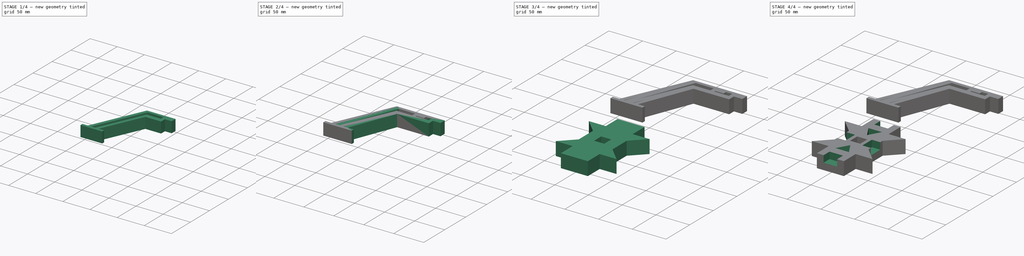
[diagram: build sequence overview — one tinted view per stage of 4, left to right]
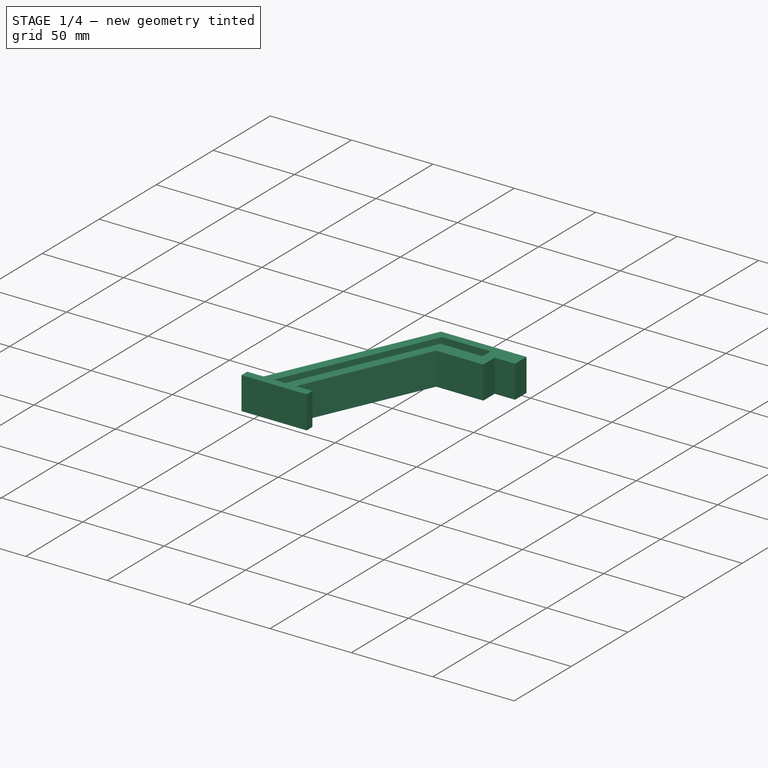
[diagram: stage 1 of 4 — iso view after this stage's code; geometry added in this stage tinted green]
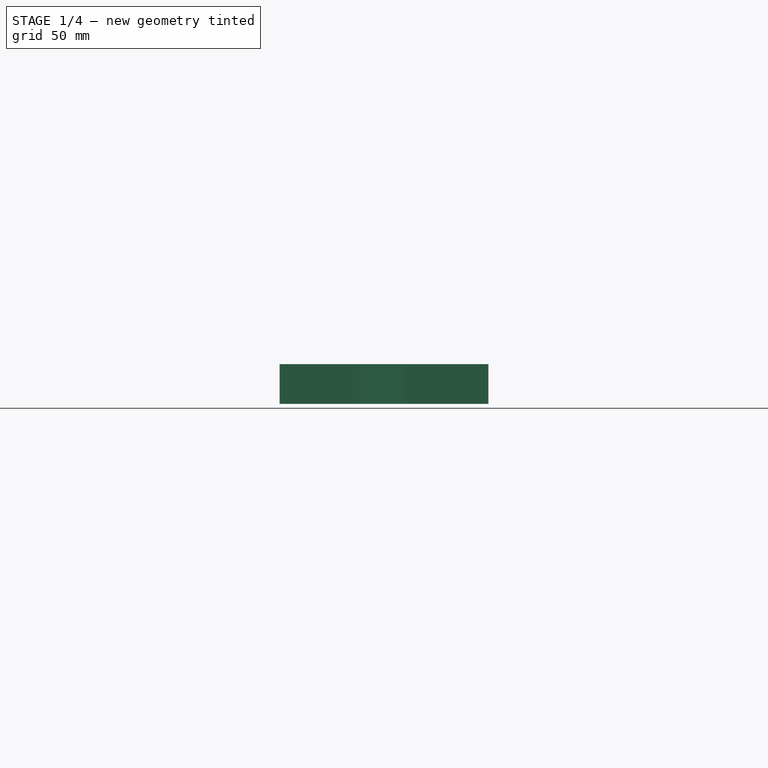
[diagram: stage 1 of 4 — front view after this stage's code; geometry added in this stage tinted green]
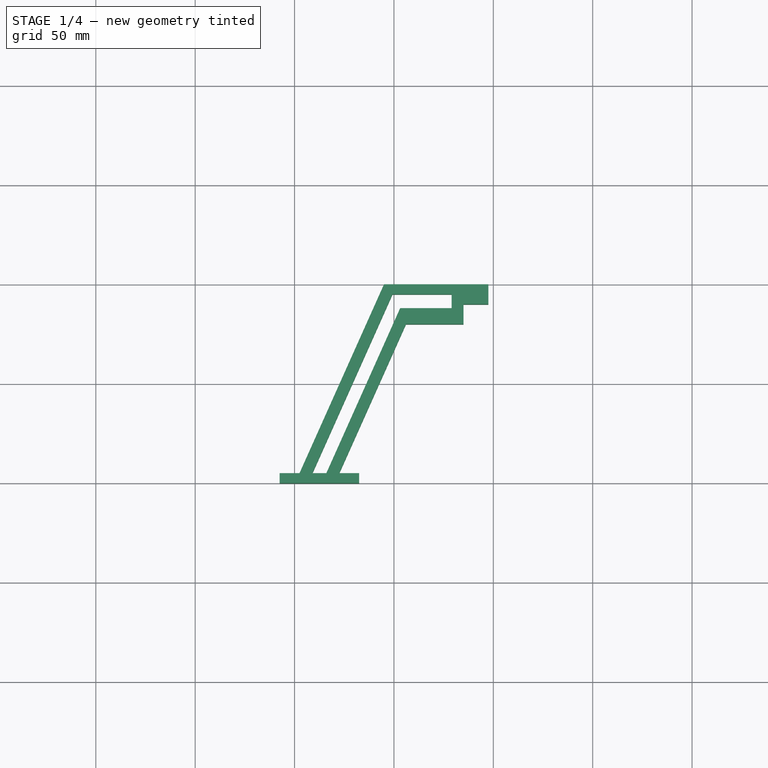
[diagram: stage 1 of 4 — top view after this stage's code; geometry added in this stage tinted green]
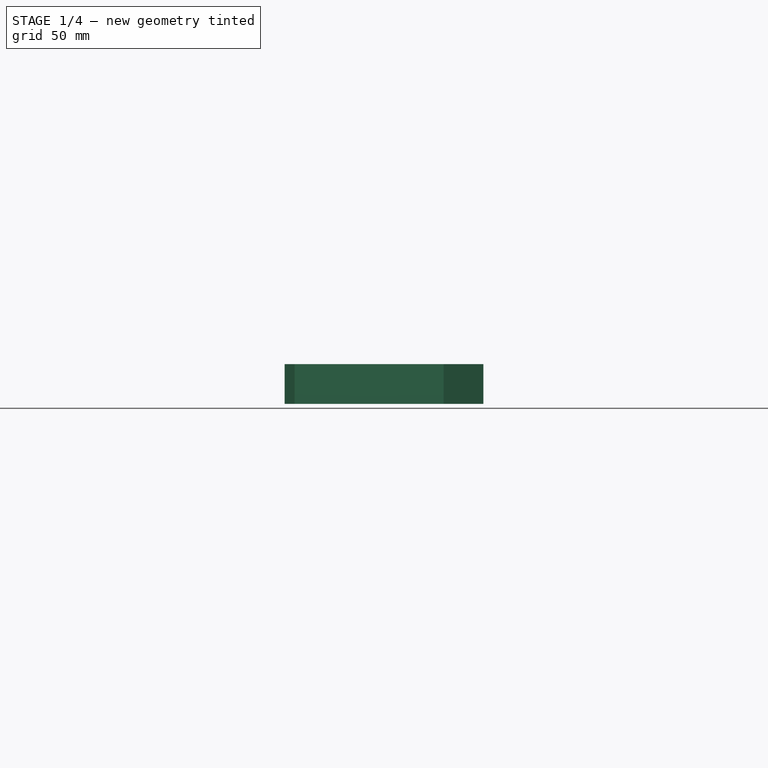
[diagram: stage 1 of 4 — right view after this stage's code; geometry added in this stage tinted green]
FCSTD DOCUMENT  (FreeCAD 0.20R29410 (Git))
Label: exoskeleton parts
License: All rights reserved
LicenseURL: http://en.wikipedia.org/wiki/All_rights_reserved
objects: Sketcher::SketchObject×11, PartDesign::Pocket×8, PartDesign::Pad×3, PartDesign::Body×3
note: 36 computed .brp shape members not serialized (recipe doc carries the construction recipe); baked Part::Feature solids carry a one-line shape summary decoded from their .brp

FEATURE [Sketcher::SketchObject] Sketch013
  FullyConstrained = true
  MapMode = 5
  Support = -> [XY_Plane003]
  sketch-geometry (10):
    g0: LineSegment StartX=22.5 StartY=5 StartZ=0 EndX=56.0526 EndY=80 EndZ=0
    g1: LineSegment StartX=56.0526 StartY=80 StartZ=0 EndX=97.5 EndY=80 EndZ=0
    g2: LineSegment StartX=97.5 StartY=80 StartZ=0 EndX=97.5 EndY=100 EndZ=0
    g3: LineSegment StartX=97.5 StartY=100 StartZ=0 EndX=45 EndY=100 EndZ=0
    g4: LineSegment StartX=45 StartY=100 StartZ=0 EndX=2.5 EndY=5 EndZ=0
    g5: LineSegment StartX=-7.5 StartY=5 StartZ=0 EndX=2.5 EndY=5 EndZ=0
    g6: LineSegment StartX=32.5 StartY=5 StartZ=0 EndX=32.5 EndY=0 EndZ=0
    g7: LineSegment StartX=32.5 StartY=0 StartZ=0 EndX=-7.5 EndY=0 EndZ=0
    g8: LineSegment StartX=-7.5 StartY=0 StartZ=0 EndX=-7.5 EndY=5 EndZ=0
    g9: LineSegment StartX=22.5 StartY=5 StartZ=0 EndX=32.5 EndY=5 EndZ=0
  constraints (29):
    c: Coincident(g0,g1)
    c: Horizontal(g1)
    c: Coincident(g1,g2)
    c: Vertical(g2)
    c: Coincident(g2,g3)
    c: Horizontal(g3)
    c: Coincident(g3,g4)
    c: DistanceX(g-1,g2) = 97.5
    c: Parallel(g4,g0)
    c: DistanceX(g3,g3) = 52.5
    c: DistanceY(g0,g3) = 20
    c: Coincident(g9,g6)
    c: Coincident(g6,g7)
    c: Coincident(g7,g8)
    c: Coincident(g8,g5)
    c: Horizontal(g5)
    c: Horizontal(g7)
    c: Vertical(g6)
    c: Vertical(g8)
    c: PointOnObject(g6,g-1)
    c: Coincident(g5,g4)
    c: Coincident(g9,g0)
    c: DistanceX(g5,g6) = 40
    c: DistanceY(g6,g6) = 5
    c: Tangent(g5,g9)
    c: DistanceX(g4,g2) = 95
    c: DistanceX(g4,g0) = 20
    c: DistanceY(g6,g2) = 100
    c: Equal(g5,g9)
FEATURE [PartDesign::Pad] Pad003
  Direction = (0,0,1)
  Length = 20
  Length2 = 10
  Profile = -> Sketch013
  ReferenceAxis = -> Sketch013 [N_Axis]
  Type = 0
FEATURE [Sketcher::SketchObject] Sketch014
  ExternalGeometry = -> [Pad003]
  FullyConstrained = true
  MapMode = 5
  Placement = pos=(0,80,0) rot=(1,0,0;1.5708rad)
  Support = -> [Pad003]
  sketch-geometry (4):
    g0: LineSegment StartX=97.5 StartY=20 StartZ=0 EndX=85 EndY=20 EndZ=0
    g1: LineSegment StartX=85 StartY=20 StartZ=0 EndX=85 EndY=0 EndZ=0
    g2: LineSegment StartX=85 StartY=0 StartZ=0 EndX=97.5 EndY=0 EndZ=0
    g3: LineSegment StartX=97.5 StartY=0 StartZ=0 EndX=97.5 EndY=20 EndZ=0
  constraints (11):
    c: Coincident(g0,g1)
    c: Coincident(g1,g2)
    c: Coincident(g2,g3)
    c: Coincident(g3,g0)
    c: Horizontal(g0)
    c: Horizontal(g2)
    c: Vertical(g1)
    c: Vertical(g3)
    c: Coincident(g0,g-3)
    c: PointOnObject(g1,g-1)
    c: DistanceX(g2,g2) = 12.5
FEATURE [PartDesign::Pocket] Pocket009
  BaseFeature = -> Pad003
  Direction = (0,1,-2e-16)
  Length = 10
  Length2 = 5
  Profile = -> Sketch014
  ReferenceAxis = -> Sketch014 [N_Axis]
  Type = 0
FEATURE [PartDesign::Body] Body  label="Long part"
  Group = -> [Sketch011,Pad,Sketch015,Pocket010,Sketch016,Pocket011]
  Origin = -> Origin
  Placement = pos=(-26.4855,0,0) rot=(0,0,1;0rad)
  Tip = -> Pocket011
FEATURE [Sketcher::SketchObject] Sketch017
  ExternalGeometry = -> [Pocket009]
  FullyConstrained = true
  MapMode = 5
  Placement = pos=(0,0,20) rot=(0,0,1;0rad)
  Support = -> [Pocket009]
  sketch-geometry (6):
    g0: LineSegment StartX=9 StartY=5 StartZ=0 EndX=49.2632 EndY=95 EndZ=0
    g1: LineSegment StartX=49.2632 StartY=95 StartZ=0 EndX=79 EndY=95 EndZ=0
    g2: LineSegment StartX=79 StartY=95 StartZ=0 EndX=79 EndY=88 EndZ=0
    g3: LineSegment StartX=79 StartY=88 StartZ=0 EndX=53.1316 EndY=88 EndZ=0
    g4: LineSegment StartX=53.1316 StartY=88 StartZ=0 EndX=16 EndY=5 EndZ=0
    g5: LineSegment StartX=16 StartY=5 StartZ=0 EndX=9 EndY=5 EndZ=0
  constraints (18):
    c: Coincident(g0,g1)
    c: Horizontal(g1)
    c: Coincident(g1,g2)
    c: Vertical(g2)
    c: Coincident(g2,g3)
    c: Horizontal(g3)
    c: Coincident(g3,g4)
    c: Coincident(g4,g5)
    c: Coincident(g5,g0)
    c: Horizontal(g5)
    c: Parallel(g0,g-4)
    c: Parallel(g-3,g4)
    c: DistanceX(g5,g5) = 7
    c: DistanceY(g3,g0) = 7
    c: DistanceY(g4,g1) = 90
    c: DistanceY(g0,g-5) = 5
    c: DistanceX(g-4,g0) = 6.5
    c: DistanceX(g0,g1) = 70
FEATURE [PartDesign::Pocket] Pocket012
  BaseFeature = -> Pocket009
  Direction = (0,0,-1)
  Length = 5
  Length2 = 5
  Profile = -> Sketch017
  ReferenceAxis = -> Sketch017 [N_Axis]
  Type = 1
FEATURE [PartDesign::Body] Body003  label="Short part"
  Group = -> [Sketch013,Pad003,Sketch014,Pocket009,Sketch017,Pocket012]
  Origin = -> Origin003
  Placement = pos=(165.795,98.8609,0) rot=(0,0,1;3.14159rad)
  Tip = -> Pocket012
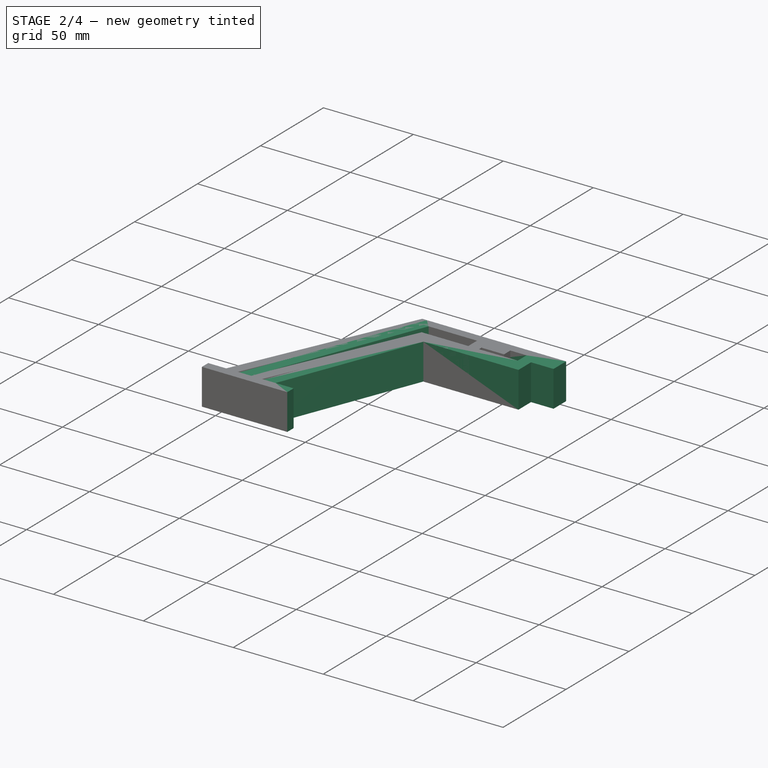
[diagram: stage 2 of 4 — iso view after this stage's code; geometry added in this stage tinted green]
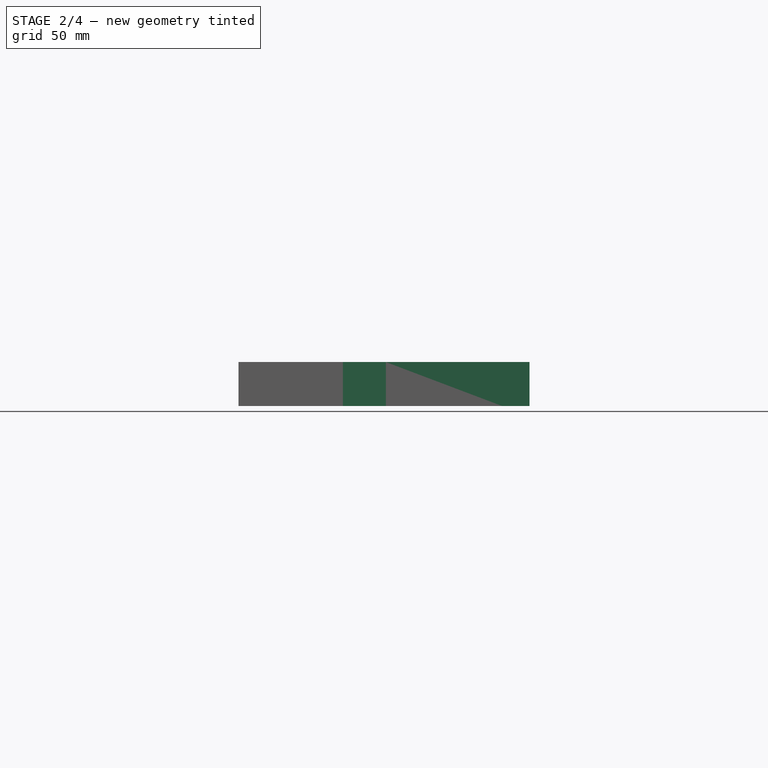
[diagram: stage 2 of 4 — front view after this stage's code; geometry added in this stage tinted green]
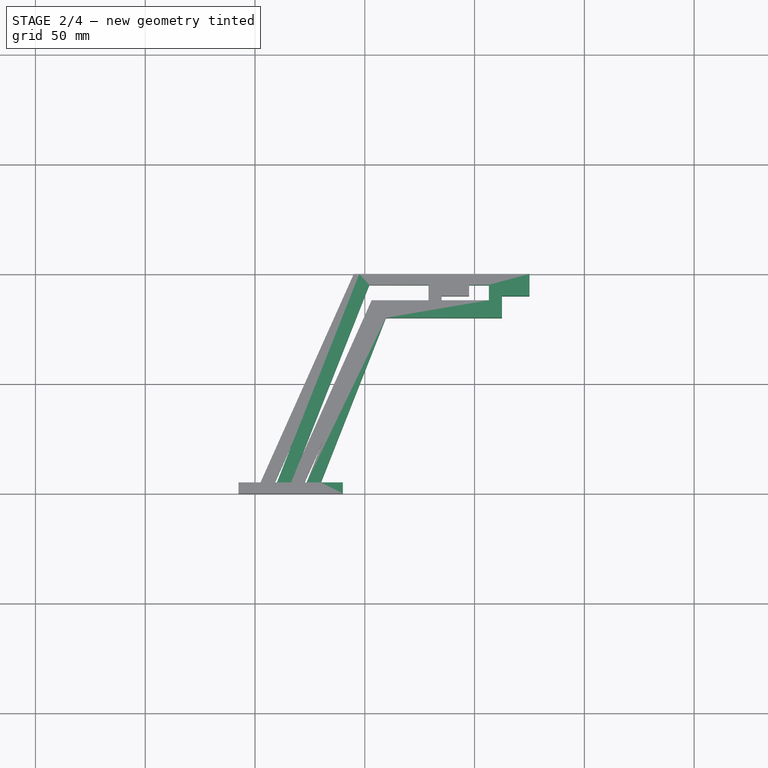
[diagram: stage 2 of 4 — top view after this stage's code; geometry added in this stage tinted green]
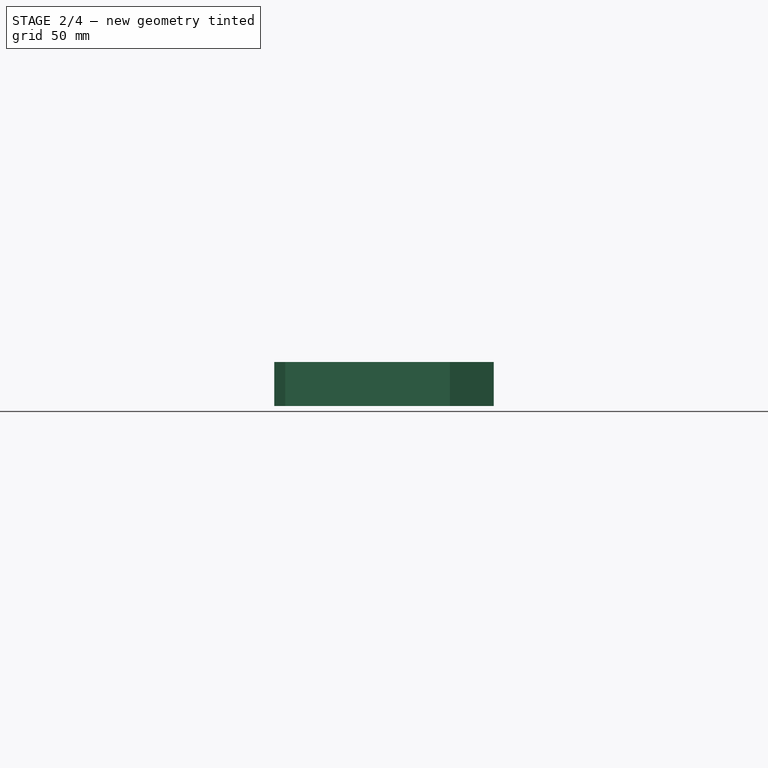
[diagram: stage 2 of 4 — right view after this stage's code; geometry added in this stage tinted green]
FEATURE [PartDesign::Body] Body002  label="Star"
  Group = -> [Sketch002,Pad002,Sketch008,Pocket005,Sketch,Pocket,Sketch009,Pocket006,Sketch010,Pocket007]
  Origin = -> Origin002
  Tip = -> Pocket007
FEATURE [Sketcher::SketchObject] Sketch011
  FullyConstrained = true
  MapMode = 5
  Support = -> [XY_Plane]
  sketch-geometry (10):
    g0: LineSegment StartX=30 StartY=5 StartZ=0 EndX=59.6053 EndY=80 EndZ=0
    g1: LineSegment StartX=59.6053 StartY=80 StartZ=0 EndX=125 EndY=80 EndZ=0
    g2: LineSegment StartX=125 StartY=80 StartZ=0 EndX=125 EndY=100 EndZ=0
    g3: LineSegment StartX=125 StartY=100 StartZ=0 EndX=47.5 EndY=100 EndZ=0
    g4: LineSegment StartX=47.5 StartY=100 StartZ=0 EndX=10 EndY=5 EndZ=0
    g5: LineSegment StartX=0 StartY=5 StartZ=0 EndX=10 EndY=5 EndZ=0
    g6: LineSegment StartX=40 StartY=5 StartZ=0 EndX=40 EndY=0 EndZ=0
    g7: LineSegment StartX=0 StartY=2.1e-15 StartZ=0 EndX=0 EndY=5 EndZ=0
    g8: LineSegment StartX=30 StartY=5 StartZ=0 EndX=40 EndY=5 EndZ=0
    g9: LineSegment StartX=0 StartY=2.1e-15 StartZ=0 EndX=40 EndY=0 EndZ=0
  constraints (28):
    c: Coincident(g0,g1)
    c: Horizontal(g1)
    c: Coincident(g1,g2)
    c: Vertical(g2)
    c: Coincident(g2,g3)
    c: Horizontal(g3)
    c: Coincident(g3,g4)
    c: Parallel(g4,g0)
    c: DistanceX(g3,g3) = 77.5
    c: DistanceY(g0,g3) = 20
    c: Coincident(g8,g6)
    c: Coincident(g7,g5)
    c: Horizontal(g5)
    c: Vertical(g6)
    c: Vertical(g7)
    c: PointOnObject(g6,g-1)
    c: DistanceY(g6,g6) = 5
    c: Coincident(g5,g4)
    c: Coincident(g8,g0)
    c: DistanceX(g7,g6) = 40
    c: Coincident(g7,g9)
    c: Coincident(g9,g6)
    c: Equal(g5,g8)
    c: Tangent(g8,g5)
    c: DistanceX(g7,g2) = 125
    c: DistanceY(g6,g2) = 100
    c: DistanceX(g4,g0) = 20
    c: Coincident(g7,g-1)
FEATURE [PartDesign::Pad] Pad
  Direction = (0,0,1)
  Length = 20
  Length2 = 10
  Profile = -> Sketch011
  ReferenceAxis = -> Sketch011 [N_Axis]
  Type = 0
FEATURE [Sketcher::SketchObject] Sketch015
  ExternalGeometry = -> [Pad]
  FullyConstrained = true
  MapMode = 5
  Placement = pos=(0,80,0) rot=(1,0,0;1.5708rad)
  Support = -> [Pad]
  sketch-geometry (4):
    g0: LineSegment StartX=125 StartY=20 StartZ=0 EndX=112.5 EndY=20 EndZ=0
    g1: LineSegment StartX=112.5 StartY=20 StartZ=0 EndX=112.5 EndY=0 EndZ=0
    g2: LineSegment StartX=112.5 StartY=0 StartZ=0 EndX=125 EndY=0 EndZ=0
    g3: LineSegment StartX=125 StartY=0 StartZ=0 EndX=125 EndY=20 EndZ=0
  constraints (10):
    c: Coincident(g0,g1)
    c: Coincident(g1,g2)
    c: Coincident(g2,g3)
    c: Coincident(g3,g0)
    c: Horizontal(g0)
    c: Horizontal(g2)
    c: Vertical(g1)
    c: Coincident(g0,g-4)
    c: DistanceX(g1,g0) = 12.5
    c: Coincident(g2,g-4)
FEATURE [PartDesign::Pocket] Pocket010
  BaseFeature = -> Pad
  Direction = (0,1,-2e-16)
  Length = 10
  Length2 = 5
  Profile = -> Sketch015
  ReferenceAxis = -> Sketch015 [N_Axis]
  Type = 0
FEATURE [Sketcher::SketchObject] Sketch016
  ExternalGeometry = -> [Pocket010]
  FullyConstrained = true
  MapMode = 5
  Placement = pos=(0,0,20) rot=(0,0,1;0rad)
  Support = -> [Pocket010]
  sketch-geometry (6):
    g0: LineSegment StartX=16.5 StartY=5 StartZ=0 EndX=52.0263 EndY=95 EndZ=0
    g1: LineSegment StartX=52.0263 StartY=95 StartZ=0 EndX=106.5 EndY=95 EndZ=0
    g2: LineSegment StartX=106.5 StartY=95 StartZ=0 EndX=106.5 EndY=88 EndZ=0
    g3: LineSegment StartX=106.5 StartY=88 StartZ=0 EndX=56.2632 EndY=88 EndZ=0
    g4: LineSegment StartX=56.2632 StartY=88 StartZ=0 EndX=23.5 EndY=5 EndZ=0
    g5: LineSegment StartX=23.5 StartY=5 StartZ=0 EndX=16.5 EndY=5 EndZ=0
  constraints (18):
    c: Coincident(g0,g1)
    c: Horizontal(g1)
    c: Coincident(g1,g2)
    c: Vertical(g2)
    c: Coincident(g2,g3)
    c: Horizontal(g3)
    c: Coincident(g3,g4)
    c: Coincident(g4,g5)
    c: Coincident(g5,g0)
    c: Parallel(g-4,g4)
    c: Parallel(g0,g-3)
    c: DistanceY(g4,g1) = 90
    c: DistanceY(g3,g0) = 7
    c: DistanceX(g5,g5) = 7
    c: Horizontal(g5)
    c: DistanceY(g0,g-5) = 5
    c: DistanceX(g0,g1) = 90
    c: DistanceX(g-3,g0) = 6.5
FEATURE [PartDesign::Pocket] Pocket011
  BaseFeature = -> Pocket010
  Direction = (0,0,-1)
  Length = 5
  Length2 = 5
  Profile = -> Sketch016
  ReferenceAxis = -> Sketch016 [N_Axis]
  Type = 1
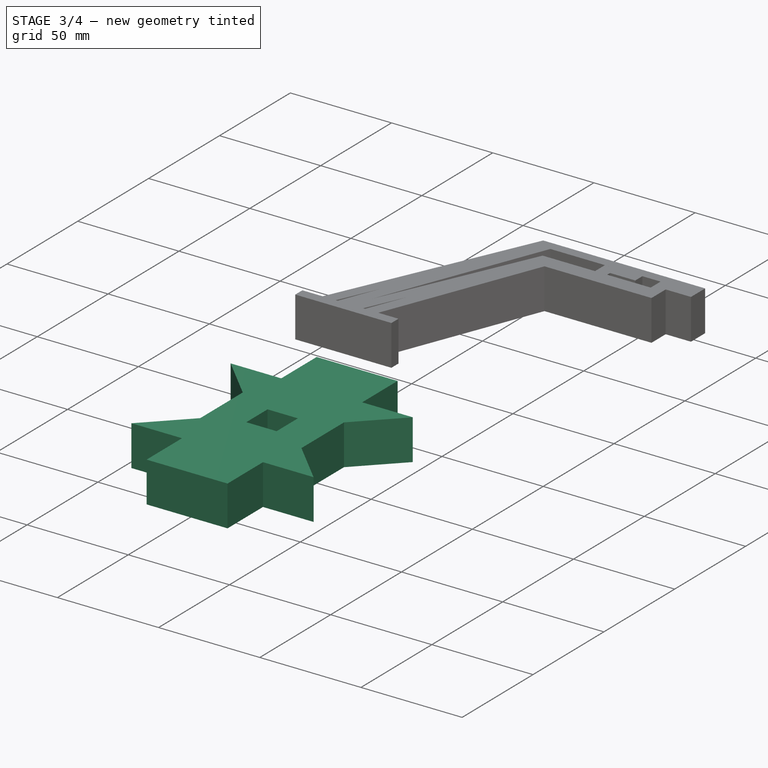
[diagram: stage 3 of 4 — iso view after this stage's code; geometry added in this stage tinted green]
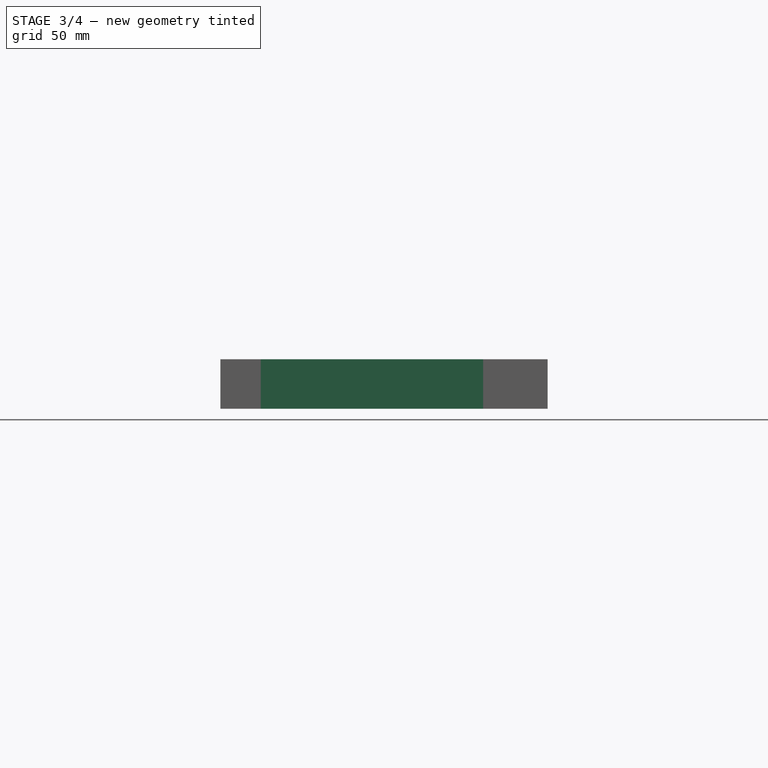
[diagram: stage 3 of 4 — front view after this stage's code; geometry added in this stage tinted green]
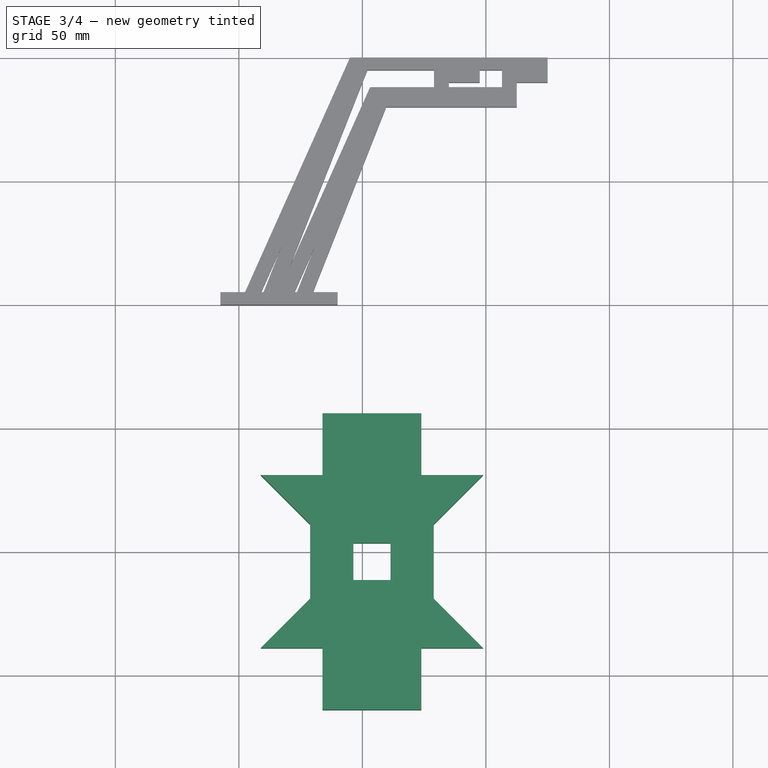
[diagram: stage 3 of 4 — top view after this stage's code; geometry added in this stage tinted green]
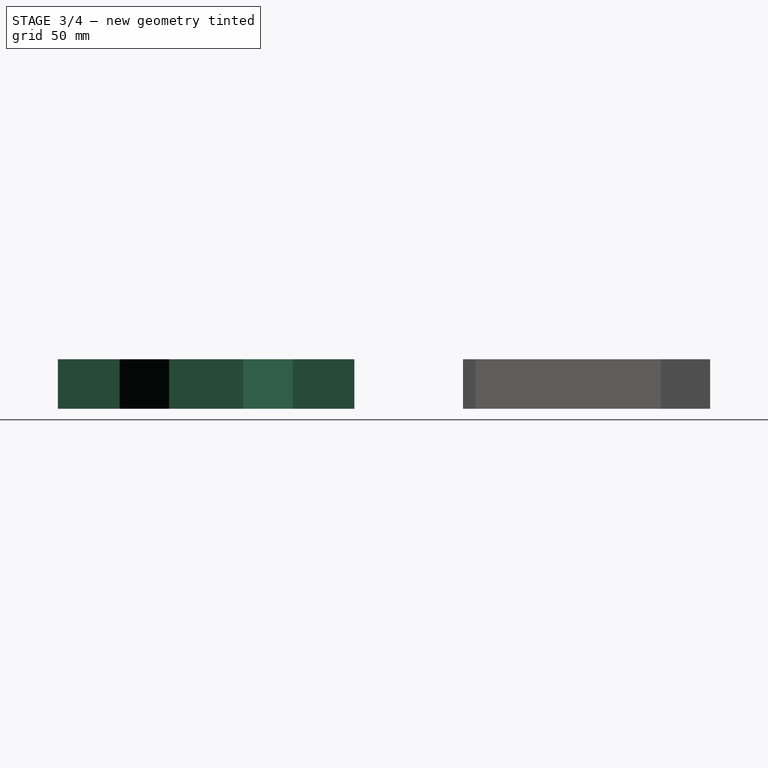
[diagram: stage 3 of 4 — right view after this stage's code; geometry added in this stage tinted green]
FEATURE [Sketcher::SketchObject] Sketch002
  FullyConstrained = true
  MapMode = 5
  Support = -> [XY_Plane002]
  sketch-geometry (20):
    g0: LineSegment StartX=8.87 StartY=-69 StartZ=0 EndX=43.87 EndY=-104 EndZ=0
    g1: LineSegment StartX=8.87 StartY=-139 StartZ=0 EndX=43.87 EndY=-104 EndZ=0
    g2: LineSegment StartX=98.87 StartY=-69 StartZ=0 EndX=63.87 EndY=-104 EndZ=0
    g3: LineSegment StartX=8.87 StartY=-139 StartZ=0 EndX=33.87 EndY=-139 EndZ=0
    g4: LineSegment StartX=33.87 StartY=-139 StartZ=0 EndX=33.87 EndY=-164 EndZ=0
    g5: LineSegment StartX=73.87 StartY=-164 StartZ=0 EndX=73.87 EndY=-139 EndZ=0
    g6: LineSegment StartX=73.87 StartY=-139 StartZ=0 EndX=98.87 EndY=-139 EndZ=0
    g7: LineSegment StartX=73.87 StartY=-44 StartZ=0 EndX=73.87 EndY=-69 EndZ=0
    g8: LineSegment StartX=73.87 StartY=-69 StartZ=0 EndX=98.87 EndY=-69 EndZ=0
    g9: LineSegment StartX=8.87 StartY=-69 StartZ=0 EndX=33.87 EndY=-69 EndZ=0
    g10: LineSegment StartX=33.87 StartY=-69 StartZ=0 EndX=33.87 EndY=-44 EndZ=0
    g11: LineSegment StartX=63.87 StartY=-104 StartZ=0 EndX=98.87 EndY=-139 EndZ=0
    g12: LineSegment StartX=8.87 StartY=-69 StartZ=0 EndX=28.87 EndY=-89 EndZ=0
    g13: LineSegment StartX=28.87 StartY=-89 StartZ=0 EndX=28.87 EndY=-119 EndZ=0
    g14: LineSegment StartX=28.87 StartY=-119 StartZ=0 EndX=8.87 EndY=-139 EndZ=0
    g15: LineSegment StartX=98.87 StartY=-139 StartZ=0 EndX=78.87 EndY=-119 EndZ=0
    g16: LineSegment StartX=78.87 StartY=-119 StartZ=0 EndX=78.87 EndY=-89 EndZ=0
    g17: LineSegment StartX=78.87 StartY=-89 StartZ=0 EndX=98.87 EndY=-69 EndZ=0
    g18: LineSegment StartX=33.87 StartY=-44 StartZ=0 EndX=73.87 EndY=-44 EndZ=0
    g19: LineSegment StartX=33.87 StartY=-164 StartZ=0 EndX=73.87 EndY=-164 EndZ=0
  constraints (58):
    c: Coincident(g1,g3)
    c: Horizontal(g3)
    c: Coincident(g3,g4)
    c: Vertical(g5)
    c: Coincident(g5,g6)
    c: Coincident(g6,g11)
    c: Vertical(g7)
    c: Coincident(g7,g8)
    c: Coincident(g8,g2)
    c: Coincident(g0,g9)
    c: Coincident(g9,g10)
    c: Coincident(g11,g2)
    c: Coincident(g1,g0)
    c: DistanceY(g5,g7) = 120
    c: DistanceX(g1,g6) = 90
    c: Equal(g10,g9)
    c: Equal(g9,g7)
    c: Equal(g7,g8)
    c: Equal(g8,g6)
    c: Equal(g6,g5)
    c: Equal(g5,g4)
    c: Equal(g4,g3)
    c: DistanceY(g4,g4) = 25
    c: DistanceY(g2,g0) = 0
    c: Perpendicular(g10,g9)
    c: Perpendicular(g7,g8)
    c: Perpendicular(g6,g5)
    c: Perpendicular(g4,g3)
    c: DistanceY(g9,g7) = 0
    c: Equal(g1,g11)
    c: Equal(g11,g2)
    c: Equal(g2,g0)
    c: Angle(g11,g2) = 1.5708
    c: DistanceX(g-1,g10) = 33.87
    c: DistanceY(g0,g-1) = 69
    c: Coincident(g9,g12)
    c: PointOnObject(g12,g0)
    c: Coincident(g12,g13)
    c: PointOnObject(g13,g1)
    c: Vertical(g13)
    c: Coincident(g13,g14)
    c: Coincident(g14,g3)
    c: Coincident(g6,g15)
    c: PointOnObject(g15,g11)
    c: Coincident(g15,g16)
    c: PointOnObject(g16,g2)
    c: Vertical(g16)
    c: Coincident(g16,g17)
    c: Coincident(g17,g8)
    c: DistanceX(g12,g16) = 50
    c: Equal(g16,g13)
    c: Coincident(g10,g18)
    c: Coincident(g18,g7)
    c: Horizontal(g18)
    c: Coincident(g4,g19)
    c: Coincident(g19,g5)
    c: Horizontal(g19)
    c: Equal(g18,g19)
FEATURE [PartDesign::Pad] Pad002  label="MainPad"
  Direction = (0,0,1)
  Length = 20
  Length2 = 10
  Profile = -> Sketch002
  ReferenceAxis = -> Sketch002 [N_Axis]
  Type = 0
FEATURE [Sketcher::SketchObject] Sketch008
  FullyConstrained = true
  MapMode = 5
  Support = -> [XY_Plane002]
  sketch-geometry (5):
    g0: LineSegment StartX=46.37 StartY=-96.5 StartZ=0 EndX=61.37 EndY=-96.5 EndZ=0
    g1: LineSegment StartX=61.37 StartY=-96.5 StartZ=0 EndX=61.37 EndY=-111.5 EndZ=0
    g2: LineSegment StartX=61.37 StartY=-111.5 StartZ=0 EndX=46.37 EndY=-111.5 EndZ=0
    g3: LineSegment StartX=46.37 StartY=-111.5 StartZ=0 EndX=46.37 EndY=-96.5 EndZ=0
    g4: GeomPoint X=53.87 Y=-104 Z=0
  constraints (14):
    c: Coincident(g0,g1)
    c: Coincident(g1,g2)
    c: Coincident(g2,g3)
    c: Coincident(g3,g0)
    c: Horizontal(g0)
    c: Horizontal(g2)
    c: Vertical(g1)
    c: Vertical(g3)
    c: DistanceX(g-1,g4) = 53.87
    c: DistanceY(g4,g-1) = 104
    c: DistanceX(g0,g0) = 15
    c: Equal(g0,g1)
    c: DistanceX(g0,g4) = 7.5
    c: DistanceY(g4,g0) = 7.5
FEATURE [PartDesign::Pocket] Pocket005
  BaseFeature = -> Pad002
  Direction = (0,0,-1)
  Length = 20
  Length2 = 5
  Profile = -> Sketch008
  ReferenceAxis = -> Sketch008 [N_Axis]
  Reversed = true
  Type = 0
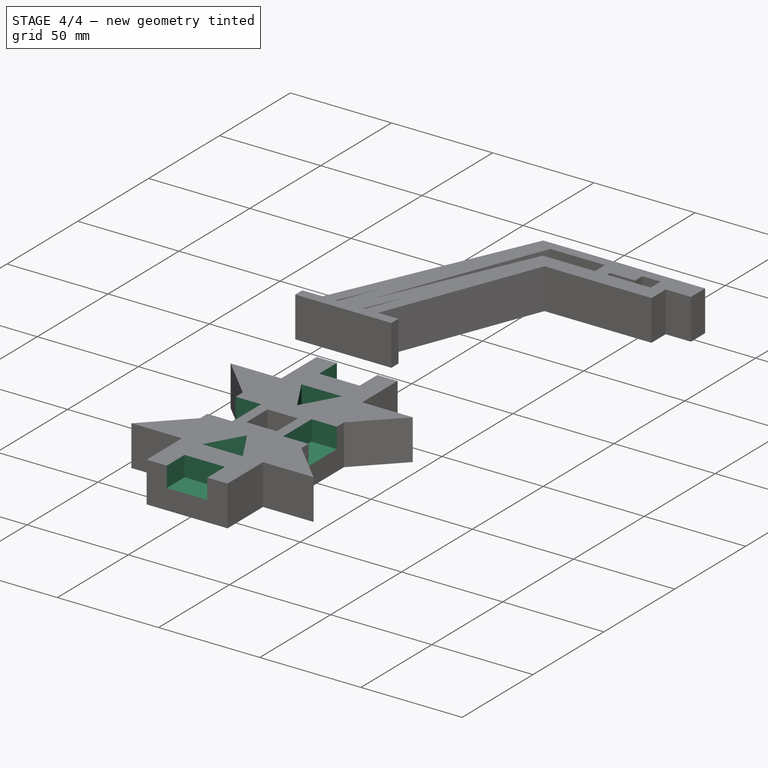
[diagram: stage 4 of 4 — iso view after this stage's code; geometry added in this stage tinted green]
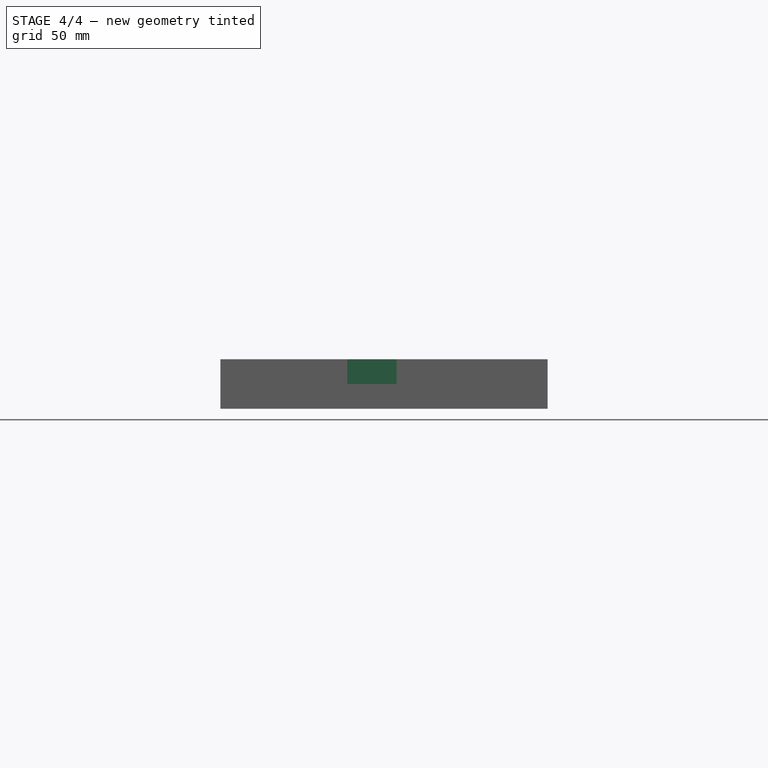
[diagram: stage 4 of 4 — front view after this stage's code; geometry added in this stage tinted green]
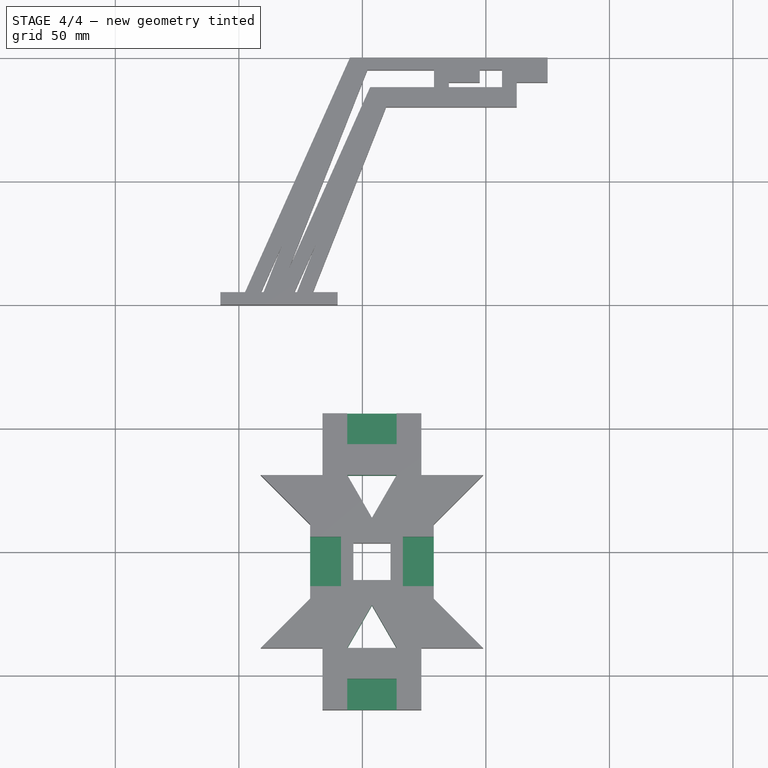
[diagram: stage 4 of 4 — top view after this stage's code; geometry added in this stage tinted green]
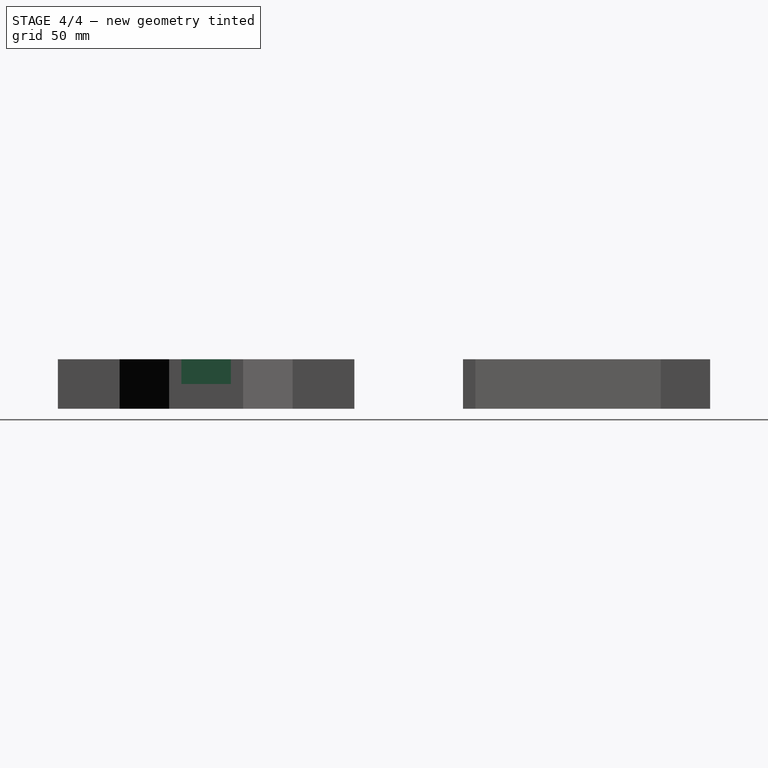
[diagram: stage 4 of 4 — right view after this stage's code; geometry added in this stage tinted green]
FEATURE [Sketcher::SketchObject] Sketch
  ExternalGeometry = -> [Pocket005]
  FullyConstrained = true
  MapMode = 5
  Placement = pos=(0,0,20) rot=(0,0,1;0rad)
  Support = -> [Pocket005]
  sketch-geometry (8):
    g0: LineSegment StartX=43.87 StartY=-151.5 StartZ=0 EndX=63.87 EndY=-151.5 EndZ=0
    g1: LineSegment StartX=63.87 StartY=-151.5 StartZ=0 EndX=63.87 EndY=-164 EndZ=0
    g2: LineSegment StartX=63.87 StartY=-164 StartZ=0 EndX=43.87 EndY=-164 EndZ=0
    g3: LineSegment StartX=43.87 StartY=-164 StartZ=0 EndX=43.87 EndY=-151.5 EndZ=0
    g4: LineSegment StartX=43.87 StartY=-44 StartZ=0 EndX=63.87 EndY=-44 EndZ=0
    g5: LineSegment StartX=63.87 StartY=-44 StartZ=0 EndX=63.87 EndY=-56.5 EndZ=0
    g6: LineSegment StartX=63.87 StartY=-56.5 StartZ=0 EndX=43.87 EndY=-56.5 EndZ=0
    g7: LineSegment StartX=43.87 StartY=-56.5 StartZ=0 EndX=43.87 EndY=-44 EndZ=0
  constraints (24):
    c: Coincident(g0,g1)
    c: Coincident(g1,g2)
    c: Coincident(g2,g3)
    c: Coincident(g3,g0)
    c: Horizontal(g0)
    c: Horizontal(g2)
    c: Vertical(g1)
    c: Vertical(g3)
    c: PointOnObject(g1,g-3)
    c: DistanceY(g1,g1) = 12.5
    c: DistanceX(g0,g0) = 20
    c: DistanceX(g0,g-4) = 10
    c: Coincident(g4,g5)
    c: Coincident(g5,g6)
    c: Coincident(g6,g7)
    c: Coincident(g7,g4)
    c: Horizontal(g4)
    c: Horizontal(g6)
    c: Vertical(g5)
    c: Vertical(g7)
    c: PointOnObject(g4,g-5)
    c: DistanceY(g5,g5) = 12.5
    c: DistanceX(g6,g6) = 20
    c: DistanceX(g-6,g6) = 10
FEATURE [PartDesign::Pocket] Pocket
  BaseFeature = -> Pocket005
  Direction = (0,0,-1)
  Length = 10
  Length2 = 5
  Profile = -> Sketch
  ReferenceAxis = -> Sketch [N_Axis]
  Type = 0
FEATURE [Sketcher::SketchObject] Sketch009
  ExternalGeometry = -> [Pocket]
  FullyConstrained = true
  MapMode = 5
  Placement = pos=(0,0,20) rot=(0,0,1;0rad)
  Support = -> [Pocket]
  sketch-geometry (8):
    g0: LineSegment StartX=66.37 StartY=-94 StartZ=0 EndX=78.87 EndY=-94 EndZ=0
    g1: LineSegment StartX=78.87 StartY=-94 StartZ=0 EndX=78.87 EndY=-114 EndZ=0
    g2: LineSegment StartX=78.87 StartY=-114 StartZ=0 EndX=66.37 EndY=-114 EndZ=0
    g3: LineSegment StartX=66.37 StartY=-114 StartZ=0 EndX=66.37 EndY=-94 EndZ=0
    g4: LineSegment StartX=28.87 StartY=-94 StartZ=0 EndX=41.37 EndY=-94 EndZ=0
    g5: LineSegment StartX=41.37 StartY=-94 StartZ=0 EndX=41.37 EndY=-114 EndZ=0
    g6: LineSegment StartX=41.37 StartY=-114 StartZ=0 EndX=28.87 EndY=-114 EndZ=0
    g7: LineSegment StartX=28.87 StartY=-114 StartZ=0 EndX=28.87 EndY=-94 EndZ=0
  constraints (24):
    c: Coincident(g0,g1)
    c: Coincident(g1,g2)
    c: Coincident(g2,g3)
    c: Coincident(g3,g0)
    c: Horizontal(g0)
    c: Horizontal(g2)
    c: Vertical(g1)
    c: Vertical(g3)
    c: PointOnObject(g1,g-3)
    c: DistanceX(g0,g0) = 12.5
    c: DistanceY(g3,g3) = 20
    c: DistanceY(g0,g-3) = 5
    c: Coincident(g4,g5)
    c: Coincident(g5,g6)
    c: Coincident(g6,g7)
    c: Coincident(g7,g4)
    c: Horizontal(g4)
    c: Horizontal(g6)
    c: Vertical(g5)
    c: Vertical(g7)
    c: PointOnObject(g4,g-6)
    c: DistanceY(g5,g5) = 20
    c: DistanceX(g6,g6) = 12.5
    c: DistanceY(g4,g-6) = 5
FEATURE [PartDesign::Pocket] Pocket006
  BaseFeature = -> Pocket
  Direction = (0,0,-1)
  Length = 10
  Length2 = 5
  Profile = -> Sketch009
  ReferenceAxis = -> Sketch009 [N_Axis]
  Type = 0
FEATURE [Sketcher::SketchObject] Sketch010
  ExternalGeometry = -> [Pocket006]
  FullyConstrained = true
  MapMode = 5
  Placement = pos=(0,0,20) rot=(0,0,1;0rad)
  Support = -> [Pocket006]
  sketch-geometry (6):
    g0: LineSegment StartX=43.87 StartY=-139 StartZ=0 EndX=53.87 EndY=-121.679 EndZ=0
    g1: LineSegment StartX=53.87 StartY=-121.679 StartZ=0 EndX=63.87 EndY=-139 EndZ=0
    g2: LineSegment StartX=63.87 StartY=-139 StartZ=0 EndX=43.87 EndY=-139 EndZ=0
    g3: LineSegment StartX=43.87 StartY=-69 StartZ=0 EndX=63.87 EndY=-69 EndZ=0
    g4: LineSegment StartX=63.87 StartY=-69 StartZ=0 EndX=53.87 EndY=-86.3205 EndZ=0
    g5: LineSegment StartX=53.87 StartY=-86.3205 StartZ=0 EndX=43.87 EndY=-69 EndZ=0
  constraints (18):
    c: Coincident(g0,g1)
    c: Coincident(g1,g2)
    c: Coincident(g2,g0)
    c: Horizontal(g2)
    c: Equal(g1,g0)
    c: Equal(g0,g2)
    c: DistanceX(g2,g2) = 20
    c: DistanceX(g1,g-4) = 10
    c: DistanceY(g-10,g1) = 12.5
    c: Horizontal(g3)
    c: Coincident(g3,g4)
    c: Coincident(g4,g5)
    c: Coincident(g5,g3)
    c: Equal(g3,g4)
    c: Equal(g4,g5)
    c: DistanceX(g3,g3) = 20
    c: DistanceX(g3,g-8) = 10
    c: Distance(g3,g-9) = 12.5
FEATURE [PartDesign::Pocket] Pocket007
  BaseFeature = -> Pocket006
  Direction = (0,0,-1)
  Length = 20
  Length2 = 5
  Profile = -> Sketch010
  ReferenceAxis = -> Sketch010 [N_Axis]
  Type = 0
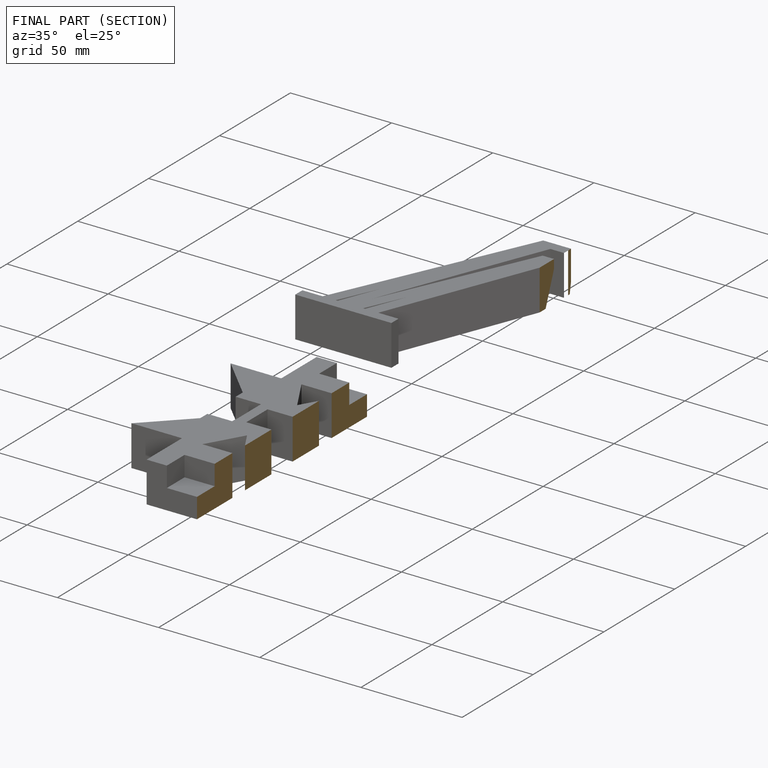
[diagram: finished part — half-section view (interior)]
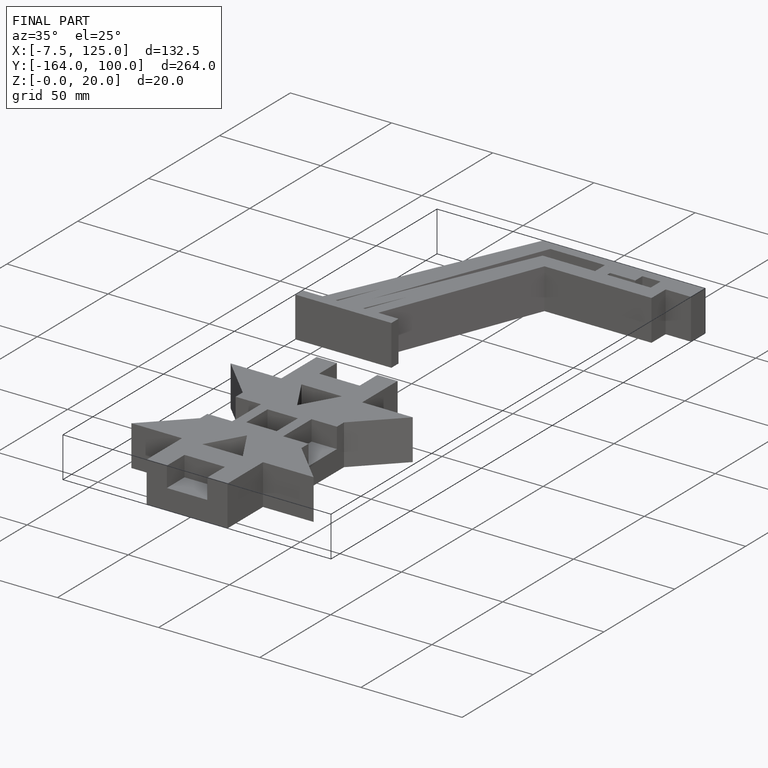
[diagram: finished part — iso view with bounding-box wireframe]
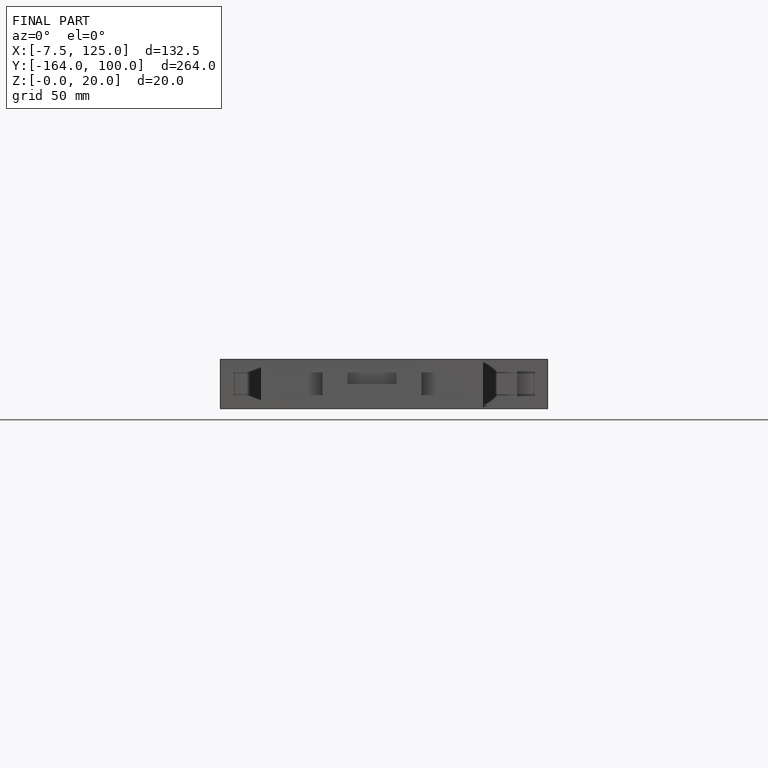
[diagram: finished part — front view with bounding-box wireframe]
